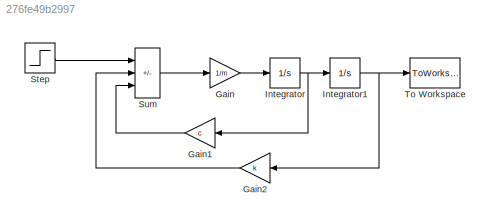
MODEL slx_276fe49b2997
KIND model
CONFIG AbsTol = auto
CONFIG EnableMultiTasking = off
CONFIG FixedStep = auto
CONFIG MaxStep = auto
CONFIG MinStep = auto
CONFIG RelTol = 1e3
CONFIG SampleTimeConstraint = Unconstrained
CONFIG SolverName = VariableStepAuto
CONFIG StartTime = 0.0
CONFIG StopTime = 10.0
BLOCK [Gain] Gain
  Gain = 1/m
BLOCK [Gain] Gain1
  Gain = c
  NameLocation = top
BLOCK [Gain] Gain2
  Gain = k
  NameLocation = top
BLOCK [Integrator] Integrator
BLOCK [Integrator] Integrator1
BLOCK [Step] Step
  SampleTime = 0
BLOCK [Sum] Sum
  IconShape = rectangular
  Inputs = +--
BLOCK [ToWorkspace] To Workspace
  FixptAsFi = on
  MaxDataPoints = inf
  SampleTime = -1
  SaveFormat = Timeseries
  VariableName = x
LINE Gain1:1 -> Sum:3
LINE Gain2:1 -> Sum:2
LINE Gain:1 -> Integrator:1
NET Integrator1:1 -> Gain2:1, To Workspace:1
NET Integrator:1 -> Gain1:1, Integrator1:1
LINE Step:1 -> Sum:1
LINE Sum:1 -> Gain:1
note: NET lines group one-source signal fan-out (src -> all destinations, sorted); 1:1 wires keep LINE
